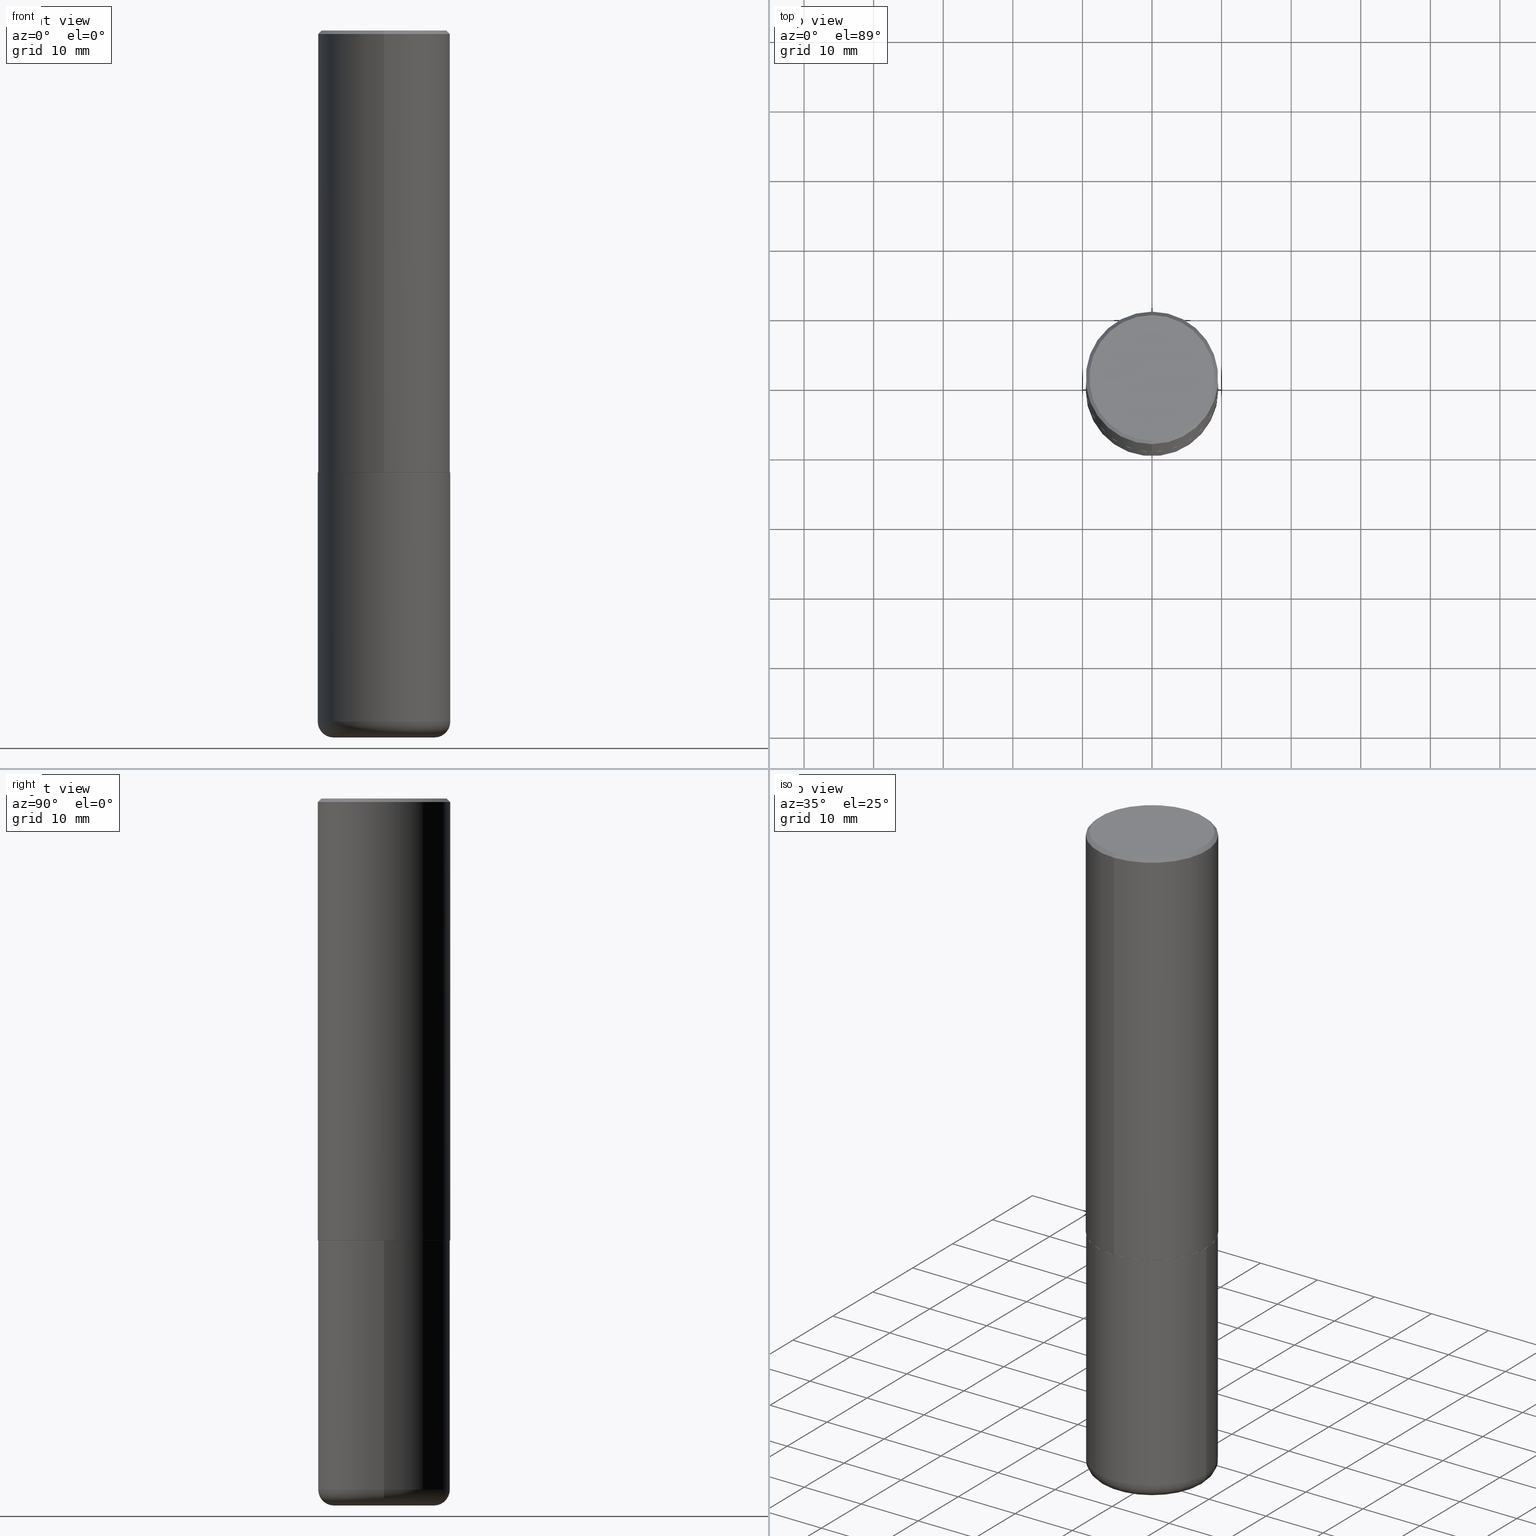
[diagram: canonical four-view strip — front | top / right | iso, engineering-drawing reading convention]
A machine part, canonical four-view strip (front | top / right | iso — engineering-drawing reading convention). The complete STEP part file that produces these views, byte-faithful:
ISO-10303-21;
HEADER;
FILE_DESCRIPTION (( 'STEP AP203' ),
    '1' );
FILE_NAME ('38298.STEP',
    '2024-03-02T21:27:53',
    ( '' ),
    ( '' ),
    'SwSTEP 2.0',
    'SolidWorks 2023',
    '' );
FILE_SCHEMA (( 'CONFIG_CONTROL_DESIGN' ));
ENDSEC;

DATA;
#1 = COORDINATED_UNIVERSAL_TIME_OFFSET ( 5, 0, .BEHIND. ) ;
#2 = VERTEX_POINT ( 'NONE', #284 ) ;
#3 = EDGE_CURVE ( 'NONE', #147, #211, #127, .T. ) ;
#4 = APPROVAL_ROLE ( '' ) ;
#5 = CARTESIAN_POINT ( 'NONE',  ( 0.3750000000000000555, -1.134731435124021180E-14, -2.499999999999999556 ) ) ;
#6 = AXIS2_PLACEMENT_3D ( 'NONE', #26, #345, #370 ) ;
#7 = LOCAL_TIME ( 16, 27, 53.00000000000000000, #213 ) ;
#8 = DATE_TIME_ROLE ( 'creation_date' ) ;
#9 = ORIENTED_EDGE ( 'NONE', *, *, #287, .F. ) ;
#10 = DIRECTION ( 'NONE',  ( -2.444465131706345255E-29, 3.492918657822378473E-15, 1.000000000000000000 ) ) ;
#11 = DIRECTION ( 'NONE',  ( -2.444465131706345255E-29, 3.492918657822378473E-15, 1.000000000000000000 ) ) ;
#12 = VECTOR ( 'NONE', #336, 39.37007874015748854 ) ;
#13 = FACE_OUTER_BOUND ( 'NONE', #314, .T. ) ;
#14 = DIRECTION ( 'NONE',  ( 1.000000000000000000, -6.982962677686266711E-15, 4.876176775795935793E-29 ) ) ;
#15 = EDGE_CURVE ( 'NONE', #211, #322, #101, .T. ) ;
#16 = CARTESIAN_POINT ( 'NONE',  ( 0.2850000000000000311, -1.595606971851316740E-14, -4.000000000000000000 ) ) ;
#17 = CARTESIAN_POINT ( 'NONE',  ( 4.888930263412711914E-31, -6.985837315644786578E-17, -0.02000000000000008715 ) ) ;
#18 = DIRECTION ( 'NONE',  ( -2.445468806185136877E-29, 3.491481338843145188E-15, 1.000000000000000000 ) ) ;
#19 = ORIENTED_EDGE ( 'NONE', *, *, #390, .T. ) ;
#20 = UNCERTAINTY_MEASURE_WITH_UNIT (LENGTH_MEASURE( 1.000000000000000082E-05 ), #274, 'distance_accuracy_value', 'NONE');
#21 = CYLINDRICAL_SURFACE ( 'NONE', #323, 0.3749999999999999445 ) ;
#22 = ORIENTED_EDGE ( 'NONE', *, *, #401, .F. ) ;
#23 = ADVANCED_FACE ( 'NONE', ( #63 ), #379, .T. ) ;
#24 = DIRECTION ( 'NONE',  ( -6.982962677686266711E-15, -1.000000000000000000, 2.921762560068730595E-15 ) ) ;
#25 = CONICAL_SURFACE ( 'NONE', #414, 0.3750000000000000555, 0.7853981633974477239 ) ;
#26 = CARTESIAN_POINT ( 'NONE',  ( 6.113672015462840371E-29, -8.728703347107863365E-15, -2.499999999999999556 ) ) ;
#27 = ORIENTED_EDGE ( 'NONE', *, *, #395, .T. ) ;
#28 = APPROVAL_DATE_TIME ( #118, #146 ) ;
#29 = DIRECTION ( 'NONE',  ( -2.444465131706345255E-29, 3.492918657822378473E-15, 1.000000000000000000 ) ) ;
#30 = AXIS2_PLACEMENT_3D ( 'NONE', #265, #193, #43 ) ;
#31 = DIRECTION ( 'NONE',  ( -6.982962677686266711E-15, -1.000000000000000000, 3.491481338843145583E-15 ) ) ;
#32 = CALENDAR_DATE ( 2024, 2, 3 ) ;
#33 = VERTEX_POINT ( 'NONE', #117 ) ;
#34 = APPROVAL_ROLE ( '' ) ;
#35 = ORIENTED_EDGE ( 'NONE', *, *, #244, .F. ) ;
#36 = APPLICATION_PROTOCOL_DEFINITION ( 'international standard', 'config_control_design', 1994, #123 ) ;
#37 = VERTEX_POINT ( 'NONE', #5 ) ;
#38 = AXIS2_PLACEMENT_3D ( 'NONE', #175, #306, #24 ) ;
#39 = TOROIDAL_SURFACE ( 'NONE', #326, 0.2850000000000000311, 0.08999999999999989952 ) ;
#40 = LINE ( 'NONE', #292, #300 ) ;
#41 = CARTESIAN_POINT ( 'NONE',  ( 6.113672015462840371E-29, -8.728703347107863365E-15, -2.499999999999999556 ) ) ;
#42 = ADVANCED_FACE ( 'NONE', ( #256 ), #223, .T. ) ;
#43 = DIRECTION ( 'NONE',  ( -6.982962677686265922E-15, -1.000000000000000000, 3.492918657822378868E-15 ) ) ;
#44 = DIRECTION ( 'NONE',  ( 1.000000000000000000, -6.982962677686263555E-15, 0.000000000000000000 ) ) ;
#45 = EDGE_CURVE ( 'NONE', #211, #147, #310, .T. ) ;
#46 = DIRECTION ( 'NONE',  ( -6.982962677686266711E-15, -1.000000000000000000, 3.492918657822378473E-15 ) ) ;
#47 = CARTESIAN_POINT ( 'NONE',  ( -0.2850000000000000311, -1.162664523796041410E-14, -3.910000000000000142 ) ) ;
#48 = ORIENTED_EDGE ( 'NONE', *, *, #139, .T. ) ;
#49 = CARTESIAN_POINT ( 'NONE',  ( 6.113672015462840371E-29, -8.728703347107863365E-15, -2.499999999999999556 ) ) ;
#50 = EDGE_CURVE ( 'NONE', #376, #33, #368, .T. ) ;
#51 = ORIENTED_EDGE ( 'NONE', *, *, #15, .T. ) ;
#52 = PRODUCT_DEFINITION_SHAPE ( 'NONE', 'NONE',  #319 ) ;
#53 = CARTESIAN_POINT ( 'NONE',  ( 6.111162829265863557E-29, -8.732296644555947170E-15, -2.500000000000000000 ) ) ;
#54 = EDGE_LOOP ( 'NONE', ( #76, #122 ) ) ;
#55 = DIRECTION ( 'NONE',  ( 1.000000000000000000, -6.982962677686266711E-15, 4.876176775795935793E-29 ) ) ;
#56 =( GEOMETRIC_REPRESENTATION_CONTEXT ( 3 ) GLOBAL_UNCERTAINTY_ASSIGNED_CONTEXT ( ( #20 ) ) GLOBAL_UNIT_ASSIGNED_CONTEXT ( ( #274, #148, #411 ) ) REPRESENTATION_CONTEXT ( 'NONE', 'WORKASPACE' ) );
#57 = EDGE_LOOP ( 'NONE', ( #144, #65, #82, #80 ) ) ;
#58 = ORIENTED_EDGE ( 'NONE', *, *, #360, .T. ) ;
#59 = DIRECTION ( 'NONE',  ( -2.445468806185136597E-29, 3.491481338843145583E-15, 1.000000000000000000 ) ) ;
#60 = PERSON_AND_ORGANIZATION_ROLE ( 'creator' ) ;
#61 = CARTESIAN_POINT ( 'NONE',  ( 9.781875224740546387E-29, -1.396592535537258233E-14, -4.000000000000000000 ) ) ;
#62 = PRODUCT_DEFINITION_FORMATION_WITH_SPECIFIED_SOURCE ( 'ANY', '', #355, .NOT_KNOWN. ) ;
#63 = FACE_OUTER_BOUND ( 'NONE', #54, .T. ) ;
#64 = CC_DESIGN_PERSON_AND_ORGANIZATION_ASSIGNMENT ( #124, #60, ( #62 ) ) ;
#65 = ORIENTED_EDGE ( 'NONE', *, *, #198, .F. ) ;
#66 = ORIENTED_EDGE ( 'NONE', *, *, #415, .F. ) ;
#67 = CIRCLE ( 'NONE', #347, 0.3749999999999999445 ) ;
#68 = EDGE_CURVE ( 'NONE', #315, #206, #174, .T. ) ;
#69 = CARTESIAN_POINT ( 'NONE',  ( -2.618611004132290852E-15, -0.3750000000000090483, -2.498999999999998778 ) ) ;
#70 = DIRECTION ( 'NONE',  ( -2.444465131706345255E-29, 3.492918657822378473E-15, 1.000000000000000000 ) ) ;
#71 = ADVANCED_FACE ( 'NONE', ( #149 ), #279, .F. ) ;
#72 = CIRCLE ( 'NONE', #132, 0.3750000000000000555 ) ;
#73 = CLOSED_SHELL ( 'NONE', ( #173, #111, #324, #335, #42, #23 ) ) ;
#74 = DIRECTION ( 'NONE',  ( -2.444465131706345255E-29, 3.492918657822378473E-15, 1.000000000000000000 ) ) ;
#75 = CARTESIAN_POINT ( 'NONE',  ( -2.572686749164323547E-15, -0.3750000000000001110, -0.01999999999999877570 ) ) ;
#76 = ORIENTED_EDGE ( 'NONE', *, *, #45, .F. ) ;
#77 = EDGE_CURVE ( 'NONE', #170, #322, #67, .T. ) ;
#78 =( LENGTH_UNIT ( ) NAMED_UNIT ( * ) SI_UNIT ( $, .METRE. ) );
#79 = AXIS2_PLACEMENT_3D ( 'NONE', #152, #321, #417 ) ;
#80 = ORIENTED_EDGE ( 'NONE', *, *, #50, .T. ) ;
#81 = CARTESIAN_POINT ( 'NONE',  ( -2.611628041454602471E-15, -0.3740000000000087699, -2.499999999999999112 ) ) ;
#82 = ORIENTED_EDGE ( 'NONE', *, *, #258, .T. ) ;
#83 = CARTESIAN_POINT ( 'NONE',  ( 0.000000000000000000, 0.000000000000000000, 0.000000000000000000 ) ) ;
#84 = ORIENTED_EDGE ( 'NONE', *, *, #302, .T. ) ;
#85 = EDGE_CURVE ( 'NONE', #206, #315, #267, .T. ) ;
#86 = DATE_AND_TIME ( #91, #338 ) ;
#87 = CIRCLE ( 'NONE', #145, 0.3549999999999999267 ) ;
#88 = EDGE_LOOP ( 'NONE', ( #27, #243, #208, #116 ) ) ;
#89 = DATE_AND_TIME ( #247, #7 ) ;
#90 = DIRECTION ( 'NONE',  ( -2.445468806185136597E-29, 3.491481338843145583E-15, 1.000000000000000000 ) ) ;
#91 = CALENDAR_DATE ( 2024, 2, 3 ) ;
#92 = APPROVAL_ROLE ( '' ) ;
#93 = AXIS2_PLACEMENT_3D ( 'NONE', #47, #242, #169 ) ;
#94 = DIRECTION ( 'NONE',  ( 1.000000000000000000, -6.982962677686266711E-15, 0.000000000000000000 ) ) ;
#95 = CARTESIAN_POINT ( 'NONE',  ( 9.561783032183883600E-29, -1.365169203487670064E-14, -3.910000000000000142 ) ) ;
#96 = ADVANCED_BREP_SHAPE_REPRESENTATION ( '38298', ( #394, #104, #330 ), #56 ) ;
#97 = DIRECTION ( 'NONE',  ( 1.000000000000000000, -6.982962677686266711E-15, 0.000000000000000000 ) ) ;
#98 = CARTESIAN_POINT ( 'NONE',  ( 0.000000000000000000, 0.000000000000000000, 0.000000000000000000 ) ) ;
#99 = CC_DESIGN_APPROVAL ( #229, ( #319 ) ) ;
#100 = LOCAL_TIME ( 16, 27, 53.00000000000000000, #1 ) ;
#101 = CIRCLE ( 'NONE', #202, 0.08999999999999992728 ) ;
#102 = CARTESIAN_POINT ( 'NONE',  ( -1.681949631662511627E-45, 2.403353262744440834E-31, 6.880644807923424831E-17 ) ) ;
#103 = DIRECTION ( 'NONE',  ( -6.982962677686266711E-15, -1.000000000000000000, 2.921762560068730595E-15 ) ) ;
#104 = MANIFOLD_SOLID_BREP ( 'Body-Move/Copy2[2]', #400 ) ;
#105 = CARTESIAN_POINT ( 'NONE',  ( -0.3749999999999999445, -1.098715677577632652E-14, -3.910000000000000142 ) ) ;
#106 = VECTOR ( 'NONE', #161, 39.37007874015748143 ) ;
#107 = AXIS2_PLACEMENT_3D ( 'NONE', #185, #29, #182 ) ;
#108 = DIRECTION ( 'NONE',  ( -2.445468806185136597E-29, 3.491481338843145583E-15, 1.000000000000000000 ) ) ;
#109 = PLANE ( 'NONE',  #6 ) ;
#110 = ORIENTED_EDGE ( 'NONE', *, *, #68, .F. ) ;
#111 = ADVANCED_FACE ( 'NONE', ( #389 ), #39, .T. ) ;
#112 = DIRECTION ( 'NONE',  ( -2.445468806185136597E-29, 3.491481338843145583E-15, 1.000000000000000000 ) ) ;
#113 = EDGE_LOOP ( 'NONE', ( #234, #168, #51, #305 ) ) ;
#114 = DIRECTION ( 'NONE',  ( 6.982962677686265922E-15, 1.000000000000000000, -3.494488891895536035E-15 ) ) ;
#115 = EDGE_LOOP ( 'NONE', ( #353, #238 ) ) ;
#116 = ORIENTED_EDGE ( 'NONE', *, *, #380, .F. ) ;
#117 = CARTESIAN_POINT ( 'NONE',  ( -2.572686749164323547E-15, -0.3750000000000001110, -0.01999999999999877570 ) ) ;
#118 = DATE_AND_TIME ( #416, #295 ) ;
#119 = DIRECTION ( 'NONE',  ( -2.445468806185136597E-29, 3.491481338843145583E-15, 1.000000000000000000 ) ) ;
#120 = ADVANCED_FACE ( 'NONE', ( #214 ), #294, .T. ) ;
#121 = DATE_AND_TIME ( #32, #252 ) ;
#122 = ORIENTED_EDGE ( 'NONE', *, *, #3, .F. ) ;
#123 = APPLICATION_CONTEXT ( 'configuration controlled 3d designs of mechanical parts and assemblies' ) ;
#124 = PERSON_AND_ORGANIZATION ( #402, #378 ) ;
#125 = CIRCLE ( 'NONE', #235, 0.3739999999999999991 ) ;
#126 = CARTESIAN_POINT ( 'NONE',  ( 6.108718364134156127E-29, -8.728803725898123939E-15, -2.498999999999999666 ) ) ;
#127 = CIRCLE ( 'NONE', #282, 0.2850000000000000311 ) ;
#128 = APPROVAL_STATUS ( 'not_yet_approved' ) ;
#129 = DIRECTION ( 'NONE',  ( 2.438088387897960049E-29, -3.491481338843145188E-15, -1.000000000000000000 ) ) ;
#130 = FACE_OUTER_BOUND ( 'NONE', #57, .T. ) ;
#131 = DIRECTION ( 'NONE',  ( 4.937700262164544887E-15, 0.7071067811865446862, -0.7071067811865503483 ) ) ;
#132 = AXIS2_PLACEMENT_3D ( 'NONE', #296, #11, #327 ) ;
#133 = CARTESIAN_POINT ( 'NONE',  ( 6.111162829265863557E-29, -8.732296644555947170E-15, -2.500000000000000000 ) ) ;
#134 = CYLINDRICAL_SURFACE ( 'NONE', #150, 0.3750000000000001665 ) ;
#135 = PLANE ( 'NONE',  #30 ) ;
#136 = VECTOR ( 'NONE', #237, 39.37007874015748854 ) ;
#137 = CC_DESIGN_SECURITY_CLASSIFICATION ( #386, ( #62 ) ) ;
#138 = LINE ( 'NONE', #141, #183 ) ;
#139 = EDGE_CURVE ( 'NONE', #322, #170, #251, .T. ) ;
#140 = EDGE_LOOP ( 'NONE', ( #22, #307, #246, #110 ) ) ;
#141 = CARTESIAN_POINT ( 'NONE',  ( 2.664535259100376486E-15, 0.3750000000000001665, -1.309844496683392470E-15 ) ) ;
#142 = EDGE_LOOP ( 'NONE', ( #172, #269 ) ) ;
#143 = LINE ( 'NONE', #167, #372 ) ;
#144 = ORIENTED_EDGE ( 'NONE', *, *, #236, .F. ) ;
#145 = AXIS2_PLACEMENT_3D ( 'NONE', #298, #362, #293 ) ;
#146 = APPROVAL ( #283, 'UNSPECIFIED' ) ;
#147 = VERTEX_POINT ( 'NONE', #329 ) ;
#148 =( NAMED_UNIT ( * ) PLANE_ANGLE_UNIT ( ) SI_UNIT ( $, .RADIAN. ) );
#149 = FACE_OUTER_BOUND ( 'NONE', #115, .T. ) ;
#150 = AXIS2_PLACEMENT_3D ( 'NONE', #226, #162, #164 ) ;
#151 = COORDINATED_UNIVERSAL_TIME_OFFSET ( 5, 0, .BEHIND. ) ;
#152 = CARTESIAN_POINT ( 'NONE',  ( 2.478951750578623815E-15, 0.3549999999999999267, -1.205582899487326820E-15 ) ) ;
#153 = COORDINATED_UNIVERSAL_TIME_OFFSET ( 5, 0, .BEHIND. ) ;
#154 = PERSON_AND_ORGANIZATION ( #402, #378 ) ;
#155 = ORIENTED_EDGE ( 'NONE', *, *, #236, .T. ) ;
#156 = ADVANCED_FACE ( 'NONE', ( #397 ), #134, .T. ) ;
#157 = SECURITY_CLASSIFICATION_LEVEL ( 'unclassified' ) ;
#158 = CONICAL_SURFACE ( 'NONE', #337, 0.3739999999999999991, 0.7853981633974141952 ) ;
#159 = ORIENTED_EDGE ( 'NONE', *, *, #68, .T. ) ;
#160 = DIRECTION ( 'NONE',  ( -2.444465131706345255E-29, 3.492918657822378868E-15, 1.000000000000000000 ) ) ;
#161 = DIRECTION ( 'NONE',  ( -4.851104656540961119E-15, -0.7071067811865495711, -0.7071067811865454633 ) ) ;
#162 = DIRECTION ( 'NONE',  ( -2.444465131706345255E-29, 3.492918657822378473E-15, 1.000000000000000000 ) ) ;
#163 = APPROVAL ( #128, 'UNSPECIFIED' ) ;
#164 = DIRECTION ( 'NONE',  ( -6.982962677686266711E-15, -1.000000000000000000, 3.492918657822378473E-15 ) ) ;
#165 = CARTESIAN_POINT ( 'NONE',  ( 4.888930263412711914E-31, -6.985837315644786578E-17, -0.02000000000000008715 ) ) ;
#166 = ADVANCED_FACE ( 'NONE', ( #130 ), #259, .T. ) ;
#167 = CARTESIAN_POINT ( 'NONE',  ( -0.3749999999999999445, 2.664535259100375303E-15, -1.844600658845589318E-29 ) ) ;
#168 = ORIENTED_EDGE ( 'NONE', *, *, #3, .T. ) ;
#169 = DIRECTION ( 'NONE',  ( -1.000000000000000000, 7.105427357600996337E-15, 0.000000000000000000 ) ) ;
#170 = VERTEX_POINT ( 'NONE', #105 ) ;
#171 = DIRECTION ( 'NONE',  ( -2.445468806185136877E-29, 3.491481338843145188E-15, 1.000000000000000000 ) ) ;
#172 = ORIENTED_EDGE ( 'NONE', *, *, #224, .T. ) ;
#173 = ADVANCED_FACE ( 'NONE', ( #369 ), #227, .T. ) ;
#174 = CIRCLE ( 'NONE', #107, 0.3750000000000002776 ) ;
#175 = CARTESIAN_POINT ( 'NONE',  ( 6.111162829265863557E-29, -8.732296644555947170E-15, -2.500000000000000000 ) ) ;
#176 = ORIENTED_EDGE ( 'NONE', *, *, #139, .F. ) ;
#177 = PERSON_AND_ORGANIZATION_ROLE ( 'design_owner' ) ;
#178 = DIMENSIONAL_EXPONENTS ( 1.000000000000000000, 0.000000000000000000, 0.000000000000000000, 0.000000000000000000, 0.000000000000000000, 0.000000000000000000, 0.000000000000000000 ) ;
#179 = ORIENTED_EDGE ( 'NONE', *, *, #85, .T. ) ;
#180 = DESIGN_CONTEXT ( 'detailed design', #123, 'design' ) ;
#181 = EDGE_CURVE ( 'NONE', #206, #33, #225, .T. ) ;
#182 = DIRECTION ( 'NONE',  ( -6.982962677686266711E-15, -1.000000000000000000, 2.913971193241878794E-15 ) ) ;
#183 = VECTOR ( 'NONE', #275, 39.37007874015748143 ) ;
#184 = PERSON_AND_ORGANIZATION_ROLE ( 'design_supplier' ) ;
#185 = CARTESIAN_POINT ( 'NONE',  ( 6.108718364134156127E-29, -8.728803725898123939E-15, -2.498999999999999666 ) ) ;
#186 = PERSON_AND_ORGANIZATION ( #402, #378 ) ;
#187 = CARTESIAN_POINT ( 'NONE',  ( 9.561783032183883600E-29, -1.365169203487670064E-14, -3.910000000000000142 ) ) ;
#188 = ADVANCED_FACE ( 'NONE', ( #13 ), #262, .T. ) ;
#189 = PERSON_AND_ORGANIZATION ( #402, #378 ) ;
#190 = VERTEX_POINT ( 'NONE', #222 ) ;
#191 = CIRCLE ( 'NONE', #316, 0.3750000000000000555 ) ;
#192 = DIRECTION ( 'NONE',  ( -6.982962677686265922E-15, -1.000000000000000000, 3.494488891895536035E-15 ) ) ;
#193 = DIRECTION ( 'NONE',  ( -2.444465131706344694E-29, 3.492918657822378868E-15, 1.000000000000000000 ) ) ;
#194 = DIRECTION ( 'NONE',  ( -2.444465131706345255E-29, 3.492918657822378473E-15, 1.000000000000000000 ) ) ;
#195 = EDGE_CURVE ( 'NONE', #373, #2, #87, .T. ) ;
#196 = DIRECTION ( 'NONE',  ( -2.445468806185136597E-29, 3.491481338843145583E-15, 1.000000000000000000 ) ) ;
#197 = CARTESIAN_POINT ( 'NONE',  ( 9.561783032183883600E-29, -1.365169203487670064E-14, -3.910000000000000142 ) ) ;
#198 = EDGE_CURVE ( 'NONE', #2, #373, #228, .T. ) ;
#199 = LENGTH_MEASURE_WITH_UNIT ( LENGTH_MEASURE( 0.02539999999999999897 ), #78 );
#200 = ORIENTED_EDGE ( 'NONE', *, *, #360, .F. ) ;
#201 = AXIS2_PLACEMENT_3D ( 'NONE', #165, #367, #392 ) ;
#202 = AXIS2_PLACEMENT_3D ( 'NONE', #413, #31, #217 ) ;
#203 = ORIENTED_EDGE ( 'NONE', *, *, #276, .F. ) ;
#204 = DIRECTION ( 'NONE',  ( 1.000000000000000000, -6.982962677686264344E-15, 0.000000000000000000 ) ) ;
#205 = CC_DESIGN_DATE_AND_TIME_ASSIGNMENT ( #121, #8, ( #319 ) ) ;
#206 = VERTEX_POINT ( 'NONE', #69 ) ;
#207 = DIRECTION ( 'NONE',  ( -2.445468806185136597E-29, 3.491481338843145583E-15, 1.000000000000000000 ) ) ;
#208 = ORIENTED_EDGE ( 'NONE', *, *, #85, .F. ) ;
#209 = AXIS2_PLACEMENT_3D ( 'NONE', #126, #254, #382 ) ;
#210 = DIRECTION ( 'NONE',  ( 1.000000000000000000, 0.000000000000000000, 0.000000000000000000 ) ) ;
#211 = VERTEX_POINT ( 'NONE', #16 ) ;
#212 = EDGE_LOOP ( 'NONE', ( #374, #19, #176, #404 ) ) ;
#213 = COORDINATED_UNIVERSAL_TIME_OFFSET ( 5, 0, .BEHIND. ) ;
#214 = FACE_OUTER_BOUND ( 'NONE', #88, .T. ) ;
#215 = PERSON_AND_ORGANIZATION ( #402, #378 ) ;
#216 = AXIS2_PLACEMENT_3D ( 'NONE', #61, #129, #351 ) ;
#217 = DIRECTION ( 'NONE',  ( 1.000000000000000000, -6.982962677686273810E-15, 0.000000000000000000 ) ) ;
#218 = ADVANCED_FACE ( 'NONE', ( #297 ), #135, .F. ) ;
#219 = DIRECTION ( 'NONE',  ( -2.445468806185136597E-29, 3.491481338843145583E-15, 1.000000000000000000 ) ) ;
#220 = ORIENTED_EDGE ( 'NONE', *, *, #195, .F. ) ;
#221 = CIRCLE ( 'NONE', #93, 0.08999999999999992728 ) ;
#222 = CARTESIAN_POINT ( 'NONE',  ( -2.611628041454602471E-15, -0.3740000000000087699, -2.499999999999999112 ) ) ;
#223 = TOROIDAL_SURFACE ( 'NONE', #387, 0.2850000000000000311, 0.08999999999999989952 ) ;
#224 = EDGE_CURVE ( 'NONE', #37, #341, #191, .T. ) ;
#225 = LINE ( 'NONE', #363, #346 ) ;
#226 = CARTESIAN_POINT ( 'NONE',  ( 0.000000000000000000, 0.000000000000000000, 0.000000000000000000 ) ) ;
#227 = CYLINDRICAL_SURFACE ( 'NONE', #366, 0.3749999999999999445 ) ;
#228 = CIRCLE ( 'NONE', #289, 0.3549999999999999267 ) ;
#229 = APPROVAL ( #313, 'UNSPECIFIED' ) ;
#230 = DIRECTION ( 'NONE',  ( -2.445468806185136597E-29, 3.491481338843145583E-15, 1.000000000000000000 ) ) ;
#231 = LINE ( 'NONE', #371, #136 ) ;
#232 = ORIENTED_EDGE ( 'NONE', *, *, #77, .T. ) ;
#233 = CARTESIAN_POINT ( 'NONE',  ( 2.660982545421636724E-15, 0.3739999999999912839, -2.500000000000001332 ) ) ;
#234 = ORIENTED_EDGE ( 'NONE', *, *, #390, .F. ) ;
#235 = AXIS2_PLACEMENT_3D ( 'NONE', #53, #403, #405 ) ;
#236 = EDGE_CURVE ( 'NONE', #373, #33, #328, .T. ) ;
#237 = DIRECTION ( 'NONE',  ( 5.024295867787889629E-15, 0.7071067811865257013, 0.7071067811865691111 ) ) ;
#238 = ORIENTED_EDGE ( 'NONE', *, *, #195, .T. ) ;
#239 = FACE_OUTER_BOUND ( 'NONE', #142, .T. ) ;
#240 = ORIENTED_EDGE ( 'NONE', *, *, #276, .T. ) ;
#241 = APPLICATION_CONTEXT ( 'configuration controlled 3d designs of mechanical parts and assemblies' ) ;
#242 = DIRECTION ( 'NONE',  ( 7.105427357601001859E-15, 1.000000000000000000, -3.491481338843145583E-15 ) ) ;
#243 = ORIENTED_EDGE ( 'NONE', *, *, #401, .T. ) ;
#244 = EDGE_CURVE ( 'NONE', #33, #376, #72, .T. ) ;
#245 = SHAPE_DEFINITION_REPRESENTATION ( #52, #96 ) ;
#246 = ORIENTED_EDGE ( 'NONE', *, *, #380, .T. ) ;
#247 = CALENDAR_DATE ( 2024, 2, 3 ) ;
#248 = DIRECTION ( 'NONE',  ( 1.000000000000000000, -6.982962677686263555E-15, 0.000000000000000000 ) ) ;
#249 = PERSON_AND_ORGANIZATION ( #402, #378 ) ;
#250 = CARTESIAN_POINT ( 'NONE',  ( 9.781875224740546387E-29, -1.396592535537258233E-14, -4.000000000000000000 ) ) ;
#251 = CIRCLE ( 'NONE', #354, 0.3749999999999999445 ) ;
#252 = LOCAL_TIME ( 16, 27, 53.00000000000000000, #352 ) ;
#253 = CC_DESIGN_DATE_AND_TIME_ASSIGNMENT ( #86, #285, ( #386 ) ) ;
#254 = DIRECTION ( 'NONE',  ( -2.444465131706345255E-29, 3.492918657822378473E-15, 1.000000000000000000 ) ) ;
#255 = DIRECTION ( 'NONE',  ( 0.000000000000000000, 0.000000000000000000, 1.000000000000000000 ) ) ;
#256 = FACE_OUTER_BOUND ( 'NONE', #113, .T. ) ;
#257 = DIRECTION ( 'NONE',  ( -6.982962677686266711E-15, -1.000000000000000000, 2.921762560068730595E-15 ) ) ;
#258 = EDGE_CURVE ( 'NONE', #2, #376, #40, .T. ) ;
#259 = CONICAL_SURFACE ( 'NONE', #201, 0.3750000000000000555, 0.7853981633974477239 ) ;
#260 = FACE_OUTER_BOUND ( 'NONE', #140, .T. ) ;
#261 = AXIS2_PLACEMENT_3D ( 'NONE', #361, #318, #192 ) ;
#262 = CYLINDRICAL_SURFACE ( 'NONE', #266, 0.3750000000000001665 ) ;
#263 = ADVANCED_FACE ( 'NONE', ( #260 ), #158, .T. ) ;
#264 = DIRECTION ( 'NONE',  ( 1.000000000000000000, -6.982962677686264344E-15, 0.000000000000000000 ) ) ;
#265 = CARTESIAN_POINT ( 'NONE',  ( 6.111162829265863557E-29, -8.732296644555947170E-15, -2.500000000000000000 ) ) ;
#266 = AXIS2_PLACEMENT_3D ( 'NONE', #334, #194, #46 ) ;
#267 = CIRCLE ( 'NONE', #209, 0.3750000000000002776 ) ;
#268 = CARTESIAN_POINT ( 'NONE',  ( -2.504081769186608216E-15, -0.3549999999999999267, 1.308792571606178433E-15 ) ) ;
#269 = ORIENTED_EDGE ( 'NONE', *, *, #287, .T. ) ;
#270 = CARTESIAN_POINT ( 'NONE',  ( 0.3749999999999999445, -1.627030303900904751E-14, -3.910000000000000142 ) ) ;
#271 = EDGE_LOOP ( 'NONE', ( #220, #155, #349, #303 ) ) ;
#272 = CARTESIAN_POINT ( 'NONE',  ( 2.618611004132350411E-15, 0.3749999999999999445, -0.02000000000000139513 ) ) ;
#273 = ORIENTED_EDGE ( 'NONE', *, *, #302, .F. ) ;
#274 =( CONVERSION_BASED_UNIT ( 'INCH', #199 ) LENGTH_UNIT ( ) NAMED_UNIT ( #178 ) );
#275 = DIRECTION ( 'NONE',  ( -2.444465131706345255E-29, 3.492918657822378868E-15, 1.000000000000000000 ) ) ;
#276 = EDGE_CURVE ( 'NONE', #322, #37, #364, .T. ) ;
#277 = ORIENTED_EDGE ( 'NONE', *, *, #181, .F. ) ;
#278 = MECHANICAL_CONTEXT ( 'NONE', #241, 'mechanical' ) ;
#279 = PLANE ( 'NONE',  #79 ) ;
#280 = AXIS2_PLACEMENT_3D ( 'NONE', #133, #70, #257 ) ;
#281 = APPROVAL_PERSON_ORGANIZATION ( #358, #229, #92 ) ;
#282 = AXIS2_PLACEMENT_3D ( 'NONE', #357, #384, #94 ) ;
#283 = APPROVAL_STATUS ( 'not_yet_approved' ) ;
#284 = CARTESIAN_POINT ( 'NONE',  ( 2.548781377355487113E-15, 0.3549999999999999267, -1.171179675447709813E-15 ) ) ;
#285 = DATE_TIME_ROLE ( 'classification_date' ) ;
#286 = CARTESIAN_POINT ( 'NONE',  ( 9.561783032183883600E-29, -1.365169203487670064E-14, -3.910000000000000142 ) ) ;
#287 = EDGE_CURVE ( 'NONE', #341, #37, #308, .T. ) ;
#288 = ORIENTED_EDGE ( 'NONE', *, *, #50, .F. ) ;
#289 = AXIS2_PLACEMENT_3D ( 'NONE', #102, #74, #393 ) ;
#290 = APPROVAL_PERSON_ORGANIZATION ( #154, #146, #4 ) ;
#291 = EDGE_LOOP ( 'NONE', ( #273, #232, #240, #9 ) ) ;
#292 = CARTESIAN_POINT ( 'NONE',  ( 2.618611004132350411E-15, 0.3749999999999999445, -0.02000000000000139513 ) ) ;
#293 = DIRECTION ( 'NONE',  ( -6.982962677686265922E-15, -1.000000000000000000, 3.492918657822378079E-15 ) ) ;
#294 = CONICAL_SURFACE ( 'NONE', #280, 0.3739999999999999991, 0.7853981633974141952 ) ;
#295 = LOCAL_TIME ( 16, 27, 53.00000000000000000, #151 ) ;
#296 = CARTESIAN_POINT ( 'NONE',  ( 4.888930263412711914E-31, -6.985837315644786578E-17, -0.02000000000000008715 ) ) ;
#297 = FACE_OUTER_BOUND ( 'NONE', #409, .T. ) ;
#298 = CARTESIAN_POINT ( 'NONE',  ( -1.681949631662511627E-45, 2.403353262744440834E-31, 6.880644807923424831E-17 ) ) ;
#299 = APPLICATION_PROTOCOL_DEFINITION ( 'international standard', 'config_control_design', 1994, #241 ) ;
#300 = VECTOR ( 'NONE', #131, 39.37007874015748143 ) ;
#301 = FACE_OUTER_BOUND ( 'NONE', #271, .T. ) ;
#302 = EDGE_CURVE ( 'NONE', #170, #341, #143, .T. ) ;
#303 = ORIENTED_EDGE ( 'NONE', *, *, #258, .F. ) ;
#304 = FACE_OUTER_BOUND ( 'NONE', #291, .T. ) ;
#305 = ORIENTED_EDGE ( 'NONE', *, *, #77, .F. ) ;
#306 = DIRECTION ( 'NONE',  ( -2.444465131706345255E-29, 3.492918657822378473E-15, 1.000000000000000000 ) ) ;
#307 = ORIENTED_EDGE ( 'NONE', *, *, #415, .T. ) ;
#308 = CIRCLE ( 'NONE', #385, 0.3750000000000000555 ) ;
#309 = CC_DESIGN_APPROVAL ( #163, ( #62 ) ) ;
#310 = CIRCLE ( 'NONE', #332, 0.2850000000000000311 ) ;
#311 = CC_DESIGN_PERSON_AND_ORGANIZATION_ASSIGNMENT ( #249, #177, ( #355 ) ) ;
#312 = EDGE_LOOP ( 'NONE', ( #179, #58, #35, #277 ) ) ;
#313 = APPROVAL_STATUS ( 'not_yet_approved' ) ;
#314 = EDGE_LOOP ( 'NONE', ( #200, #159, #339, #288 ) ) ;
#315 = VERTEX_POINT ( 'NONE', #340 ) ;
#316 = AXIS2_PLACEMENT_3D ( 'NONE', #41, #108, #264 ) ;
#317 = PERSON_AND_ORGANIZATION_ROLE ( 'creator' ) ;
#318 = DIRECTION ( 'NONE',  ( -2.444465131706345255E-29, 3.492918657822378473E-15, 1.000000000000000000 ) ) ;
#319 = PRODUCT_DEFINITION ( 'UNKNOWN', '', #62, #180 ) ;
#320 = CALENDAR_DATE ( 2024, 2, 3 ) ;
#321 = DIRECTION ( 'NONE',  ( 2.444465131706344694E-29, -3.492918657822378868E-15, -1.000000000000000000 ) ) ;
#322 = VERTEX_POINT ( 'NONE', #270 ) ;
#323 = AXIS2_PLACEMENT_3D ( 'NONE', #83, #112, #55 ) ;
#324 = ADVANCED_FACE ( 'NONE', ( #239 ), #109, .F. ) ;
#325 = APPROVAL_PERSON_ORGANIZATION ( #186, #163, #34 ) ;
#326 = AXIS2_PLACEMENT_3D ( 'NONE', #95, #219, #359 ) ;
#327 = DIRECTION ( 'NONE',  ( -6.982962677686265922E-15, -1.000000000000000000, 3.494488891895536035E-15 ) ) ;
#328 = LINE ( 'NONE', #75, #106 ) ;
#329 = CARTESIAN_POINT ( 'NONE',  ( -0.2850000000000000311, -1.146401766711631116E-14, -4.000000000000000000 ) ) ;
#330 = AXIS2_PLACEMENT_3D ( 'NONE', #350, #255, #210 ) ;
#331 = CARTESIAN_POINT ( 'NONE',  ( 0.3749999999999999445, -2.618611004132349622E-15, 1.828566290923475642E-29 ) ) ;
#332 = AXIS2_PLACEMENT_3D ( 'NONE', #250, #59, #97 ) ;
#333 = CC_DESIGN_PERSON_AND_ORGANIZATION_ASSIGNMENT ( #215, #356, ( #386 ) ) ;
#334 = CARTESIAN_POINT ( 'NONE',  ( 0.000000000000000000, 0.000000000000000000, 0.000000000000000000 ) ) ;
#335 = ADVANCED_FACE ( 'NONE', ( #304 ), #21, .T. ) ;
#336 = DIRECTION ( 'NONE',  ( -4.937700262164378437E-15, -0.7071067811865208164, 0.7071067811865739960 ) ) ;
#337 = AXIS2_PLACEMENT_3D ( 'NONE', #396, #10, #103 ) ;
#338 = LOCAL_TIME ( 16, 27, 53.00000000000000000, #153 ) ;
#339 = ORIENTED_EDGE ( 'NONE', *, *, #181, .T. ) ;
#340 = CARTESIAN_POINT ( 'NONE',  ( 2.664535259100408040E-15, 0.3749999999999915623, -2.499000000000000998 ) ) ;
#341 = VERTEX_POINT ( 'NONE', #375 ) ;
#342 = DIRECTION ( 'NONE',  ( 2.444465131706345255E-29, -3.492918657822378473E-15, -1.000000000000000000 ) ) ;
#343 = VERTEX_POINT ( 'NONE', #233 ) ;
#344 = ADVANCED_FACE ( 'NONE', ( #301 ), #25, .T. ) ;
#345 = DIRECTION ( 'NONE',  ( 2.438088387897960049E-29, -3.491481338843145188E-15, -1.000000000000000000 ) ) ;
#346 = VECTOR ( 'NONE', #160, 39.37007874015748143 ) ;
#347 = AXIS2_PLACEMENT_3D ( 'NONE', #286, #119, #248 ) ;
#348 = DATE_AND_TIME ( #320, #100 ) ;
#349 = ORIENTED_EDGE ( 'NONE', *, *, #244, .T. ) ;
#350 = CARTESIAN_POINT ( 'NONE',  ( 0.000000000000000000, 0.000000000000000000, 0.000000000000000000 ) ) ;
#351 = DIRECTION ( 'NONE',  ( -1.000000000000000000, 6.982962677686265922E-15, -4.876176775795935793E-29 ) ) ;
#352 = COORDINATED_UNIVERSAL_TIME_OFFSET ( 5, 0, .BEHIND. ) ;
#353 = ORIENTED_EDGE ( 'NONE', *, *, #198, .T. ) ;
#354 = AXIS2_PLACEMENT_3D ( 'NONE', #197, #230, #44 ) ;
#355 = PRODUCT ( '38298', '38298', '', ( #278 ) ) ;
#356 = PERSON_AND_ORGANIZATION_ROLE ( 'classification_officer' ) ;
#357 = CARTESIAN_POINT ( 'NONE',  ( 9.781875224740546387E-29, -1.396592535537258233E-14, -4.000000000000000000 ) ) ;
#358 = PERSON_AND_ORGANIZATION ( #402, #378 ) ;
#359 = DIRECTION ( 'NONE',  ( 1.000000000000000000, -6.982962677686263555E-15, 4.883557194083111219E-29 ) ) ;
#360 = EDGE_CURVE ( 'NONE', #315, #376, #138, .T. ) ;
#361 = CARTESIAN_POINT ( 'NONE',  ( 4.888930263412711914E-31, -6.985837315644786578E-17, -0.02000000000000008715 ) ) ;
#362 = DIRECTION ( 'NONE',  ( -2.444465131706345255E-29, 3.492918657822378473E-15, 1.000000000000000000 ) ) ;
#363 = CARTESIAN_POINT ( 'NONE',  ( -2.618611004132351200E-15, -0.3750000000000001665, 1.309844496683392470E-15 ) ) ;
#364 = LINE ( 'NONE', #331, #398 ) ;
#365 = CC_DESIGN_PERSON_AND_ORGANIZATION_ASSIGNMENT ( #189, #317, ( #319 ) ) ;
#366 = AXIS2_PLACEMENT_3D ( 'NONE', #98, #196, #14 ) ;
#367 = DIRECTION ( 'NONE',  ( 2.444465131706345255E-29, -3.492918657822378473E-15, -1.000000000000000000 ) ) ;
#368 = CIRCLE ( 'NONE', #261, 0.3750000000000000555 ) ;
#369 = FACE_OUTER_BOUND ( 'NONE', #412, .T. ) ;
#370 = DIRECTION ( 'NONE',  ( -1.000000000000000000, 6.982962677686265922E-15, -4.876176775795935793E-29 ) ) ;
#371 = CARTESIAN_POINT ( 'NONE',  ( 2.657429831742835431E-15, 0.3739999999999912839, -2.500000000000001332 ) ) ;
#372 = VECTOR ( 'NONE', #171, 39.37007874015748143 ) ;
#373 = VERTEX_POINT ( 'NONE', #268 ) ;
#374 = ORIENTED_EDGE ( 'NONE', *, *, #45, .T. ) ;
#375 = CARTESIAN_POINT ( 'NONE',  ( -0.3750000000000000555, -8.525662431891907096E-15, -2.499999999999999556 ) ) ;
#376 = VERTEX_POINT ( 'NONE', #272 ) ;
#377 = ORIENTED_EDGE ( 'NONE', *, *, #224, .F. ) ;
#378 = ORGANIZATION ( 'UNSPECIFIED', 'UNSPECIFIED', '' ) ;
#379 = PLANE ( 'NONE',  #216 ) ;
#380 = EDGE_CURVE ( 'NONE', #190, #206, #407, .T. ) ;
#381 = PERSON_AND_ORGANIZATION ( #402, #378 ) ;
#382 = DIRECTION ( 'NONE',  ( -6.982962677686266711E-15, -1.000000000000000000, 2.913971193241878794E-15 ) ) ;
#383 = APPROVAL_DATE_TIME ( #348, #229 ) ;
#384 = DIRECTION ( 'NONE',  ( -2.445468806185136597E-29, 3.491481338843145583E-15, 1.000000000000000000 ) ) ;
#385 = AXIS2_PLACEMENT_3D ( 'NONE', #49, #207, #204 ) ;
#386 = SECURITY_CLASSIFICATION ( '', '', #157 ) ;
#387 = AXIS2_PLACEMENT_3D ( 'NONE', #187, #90, #391 ) ;
#388 = APPROVAL_DATE_TIME ( #89, #163 ) ;
#389 = FACE_OUTER_BOUND ( 'NONE', #212, .T. ) ;
#390 = EDGE_CURVE ( 'NONE', #147, #170, #221, .T. ) ;
#391 = DIRECTION ( 'NONE',  ( 1.000000000000000000, -6.982962677686263555E-15, 4.883557194083111219E-29 ) ) ;
#392 = DIRECTION ( 'NONE',  ( 6.982962677686265922E-15, 1.000000000000000000, -3.494488891895536035E-15 ) ) ;
#393 = DIRECTION ( 'NONE',  ( -6.982962677686265922E-15, -1.000000000000000000, 3.492918657822378079E-15 ) ) ;
#394 = MANIFOLD_SOLID_BREP ( 'Body-Move/Copy2[1]', #73 ) ;
#395 = EDGE_CURVE ( 'NONE', #190, #343, #125, .T. ) ;
#396 = CARTESIAN_POINT ( 'NONE',  ( 6.111162829265863557E-29, -8.732296644555947170E-15, -2.500000000000000000 ) ) ;
#397 = FACE_OUTER_BOUND ( 'NONE', #312, .T. ) ;
#398 = VECTOR ( 'NONE', #18, 39.37007874015748143 ) ;
#399 = CC_DESIGN_APPROVAL ( #146, ( #386 ) ) ;
#400 = CLOSED_SHELL ( 'NONE', ( #120, #156, #344, #166, #188, #263, #218, #71 ) ) ;
#401 = EDGE_CURVE ( 'NONE', #343, #315, #231, .T. ) ;
#402 = PERSON ( 'UNSPECIFIED', 'UNSPECIFIED', 'UNSPECIFIED', ('UNSPECIFIED'), ('UNSPECIFIED'), ('UNSPECIFIED') ) ;
#403 = DIRECTION ( 'NONE',  ( -2.444465131706345255E-29, 3.492918657822378473E-15, 1.000000000000000000 ) ) ;
#404 = ORIENTED_EDGE ( 'NONE', *, *, #15, .F. ) ;
#405 = DIRECTION ( 'NONE',  ( -6.982962677686266711E-15, -1.000000000000000000, 2.921762560068730595E-15 ) ) ;
#406 = ORIENTED_EDGE ( 'NONE', *, *, #395, .F. ) ;
#407 = LINE ( 'NONE', #81, #12 ) ;
#408 = CIRCLE ( 'NONE', #38, 0.3739999999999999991 ) ;
#409 = EDGE_LOOP ( 'NONE', ( #406, #66 ) ) ;
#410 = CC_DESIGN_PERSON_AND_ORGANIZATION_ASSIGNMENT ( #381, #184, ( #62 ) ) ;
#411 =( NAMED_UNIT ( * ) SI_UNIT ( $, .STERADIAN. ) SOLID_ANGLE_UNIT ( ) );
#412 = EDGE_LOOP ( 'NONE', ( #48, #84, #377, #203 ) ) ;
#413 = CARTESIAN_POINT ( 'NONE',  ( 0.2850000000000000311, -1.564183639801728729E-14, -3.910000000000000142 ) ) ;
#414 = AXIS2_PLACEMENT_3D ( 'NONE', #17, #342, #114 ) ;
#415 = EDGE_CURVE ( 'NONE', #343, #190, #408, .T. ) ;
#416 = CALENDAR_DATE ( 2024, 2, 3 ) ;
#417 = DIRECTION ( 'NONE',  ( 6.982962677686265922E-15, 1.000000000000000000, -3.492918657822378868E-15 ) ) ;
#418 = PRODUCT_RELATED_PRODUCT_CATEGORY ( 'detail', '', ( #355 ) ) ;
ENDSEC;
END-ISO-10303-21;
